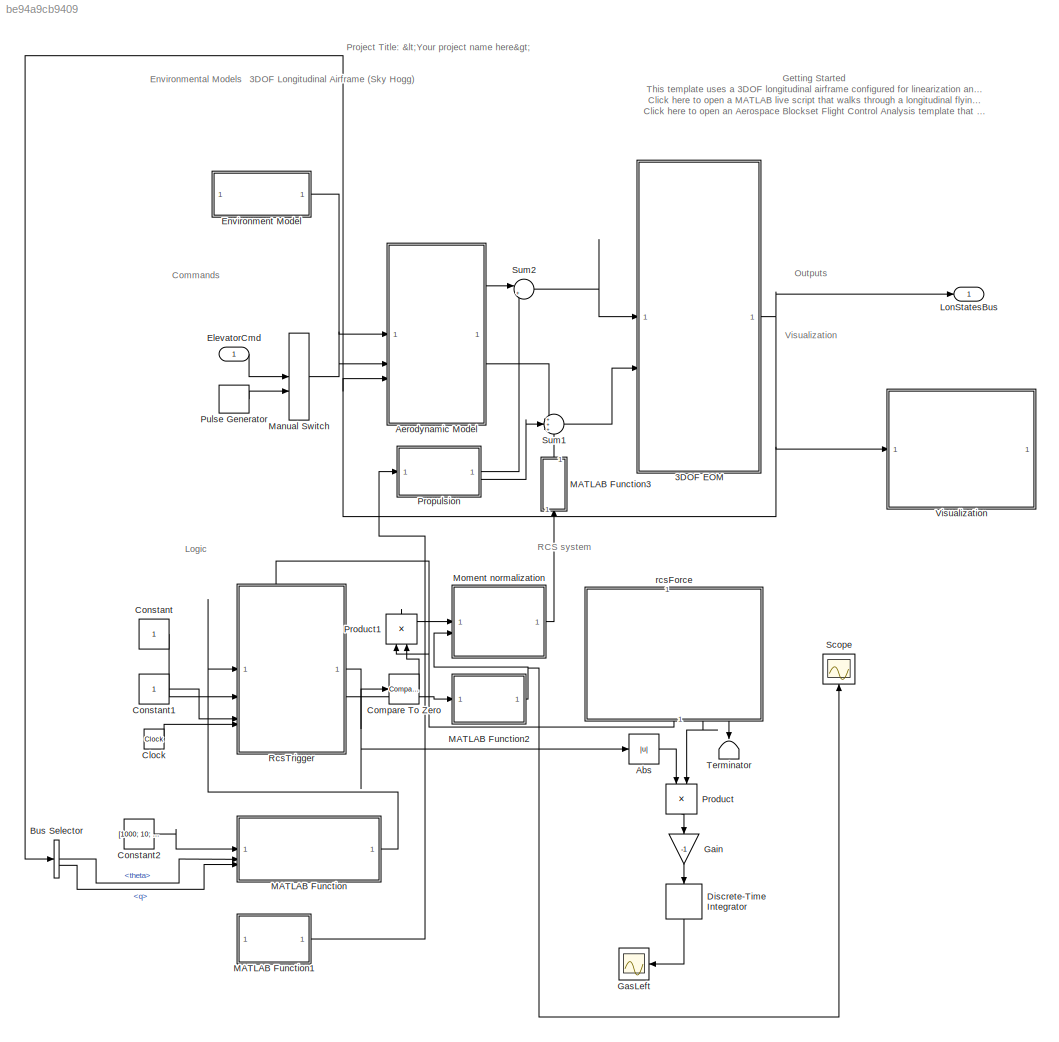
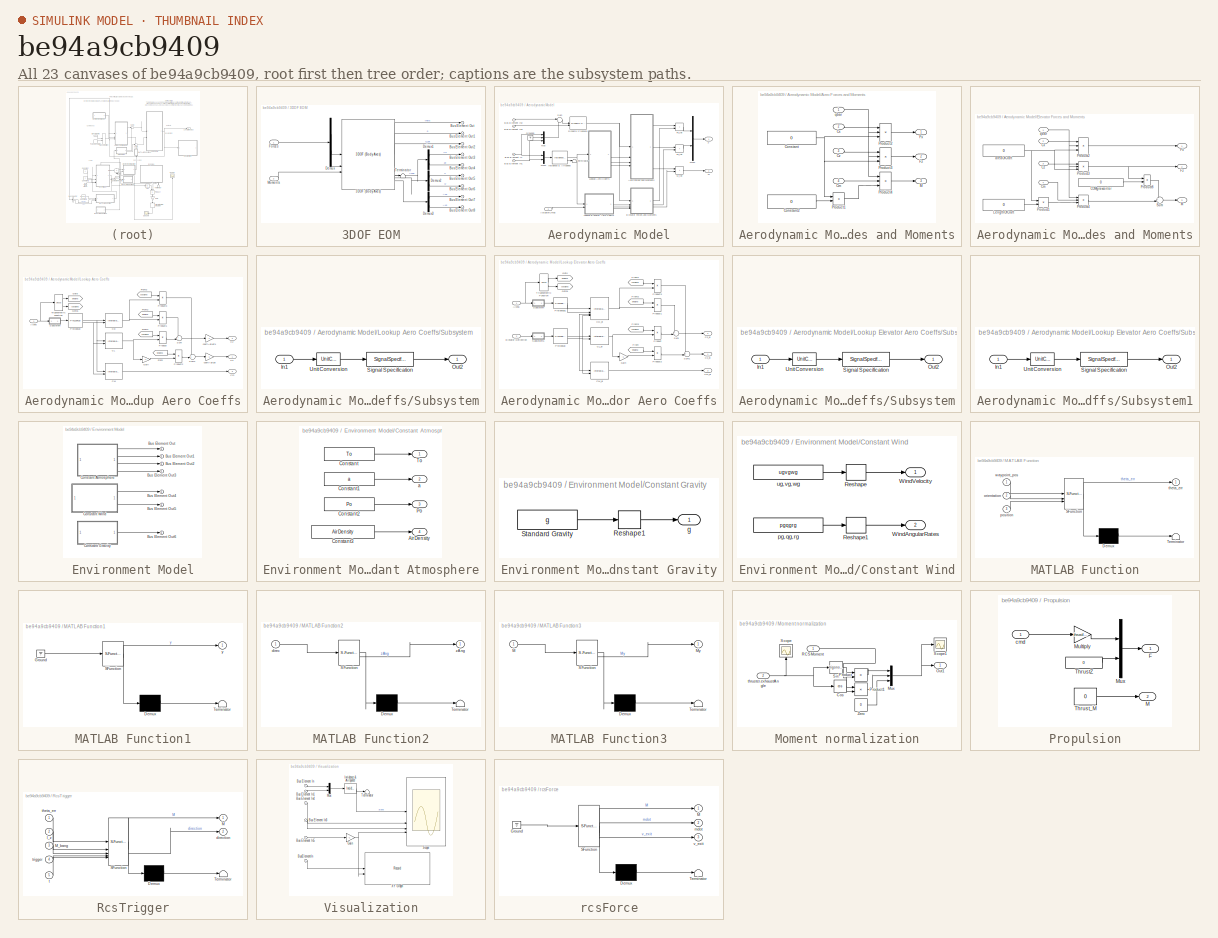
[diagram: thumbnail index - all 23 canvases of the model, root first then tree order]
MODEL slx_be94a9cb9409
KIND model
CONFIG AbsTol = auto
CONFIG EnableMultiTasking = off
CONFIG FixedStep = auto
CONFIG InitFcn = run('preSimLoad.m');\n\n
CONFIG MaxStep = auto
CONFIG MinStep = auto
CONFIG PreLoadFcn = run('preSimLoad.m');\n
CONFIG RelTol = 1e-5
CONFIG SampleTimeConstraint = Unconstrained
CONFIG SolverName = ode45
CONFIG StartTime = 0.0
CONFIG StopTime = 100
BLOCK [SubSystem] 3DOF EOM
  VariantControl = eom3DOF
BLOCK [Reference] 3DOF EOM/3DOF (Body Axes)  REF=shared3dof/3DOF (Body Axes)
  SourceBlock = shared3dof/3DOF (Body Axes)
  SourceType = 3DOF EoM
BLOCK [Outport] 3DOF EOM/Bus Element Out
  VectorParamsAs1DForOutWhenUnconnected = off
BLOCK [Outport] 3DOF EOM/Bus Element Out1
  VectorParamsAs1DForOutWhenUnconnected = off
BLOCK [Outport] 3DOF EOM/Bus Element Out2
  VectorParamsAs1DForOutWhenUnconnected = off
BLOCK [Outport] 3DOF EOM/Bus Element Out3
  VectorParamsAs1DForOutWhenUnconnected = off
BLOCK [Outport] 3DOF EOM/Bus Element Out4
  VectorParamsAs1DForOutWhenUnconnected = off
BLOCK [Outport] 3DOF EOM/Bus Element Out5
  VectorParamsAs1DForOutWhenUnconnected = off
BLOCK [Outport] 3DOF EOM/Bus Element Out6
  VectorParamsAs1DForOutWhenUnconnected = off
BLOCK [Outport] 3DOF EOM/Bus Element Out7
  VectorParamsAs1DForOutWhenUnconnected = off
BLOCK [Outport] 3DOF EOM/Bus Element Out8
  VectorParamsAs1DForOutWhenUnconnected = off
BLOCK [Demux] 3DOF EOM/Demux
  Outputs = 2
BLOCK [Demux] 3DOF EOM/Demux1
  Outputs = 2
BLOCK [Demux] 3DOF EOM/Demux2
  Outputs = 2
BLOCK [Demux] 3DOF EOM/Demux3
  Outputs = 2
BLOCK [Inport] 3DOF EOM/Forces
BLOCK [Inport] 3DOF EOM/Moments
  Port = 2
BLOCK [Terminator] 3DOF EOM/Terminator
BLOCK [Abs] Abs
  SaturateOnIntegerOverflow = off
BLOCK [SubSystem] Aerodynamic Model
  VariantControl = aeroCONST
BLOCK [Outport] Aerodynamic Model/ M
  Port = 2
  Unit = N*m
  VectorParamsAs1DForOutWhenUnconnected = off
BLOCK [Inport] Aerodynamic Model/ActuatorCmds
  Port = 2
BLOCK [SubSystem] Aerodynamic Model/Aero Forces and Moments
BLOCK [Inport] Aerodynamic Model/Aero Forces and Moments/Cm
  Port = 4
BLOCK [Constant] Aerodynamic Model/Aero Forces and Moments/Constant
  Value = 0
BLOCK [Constant] Aerodynamic Model/Aero Forces and Moments/Constant2
  Value = 0
BLOCK [Inport] Aerodynamic Model/Aero Forces and Moments/Cx
  Port = 2
BLOCK [Inport] Aerodynamic Model/Aero Forces and Moments/Cz
  Port = 3
BLOCK [Outport] Aerodynamic Model/Aero Forces and Moments/Fx
  VectorParamsAs1DForOutWhenUnconnected = off
BLOCK [Outport] Aerodynamic Model/Aero Forces and Moments/Fz
  Port = 2
  VectorParamsAs1DForOutWhenUnconnected = off
BLOCK [Outport] Aerodynamic Model/Aero Forces and Moments/M
  Port = 3
  VectorParamsAs1DForOutWhenUnconnected = off
BLOCK [Product] Aerodynamic Model/Aero Forces and Moments/Product1
  InputSameDT = on
  OutDataTypeStr = Inherit: Same as first input
  SaturateOnIntegerOverflow = on
BLOCK [Product] Aerodynamic Model/Aero Forces and Moments/Product2
  InputSameDT = on
  Inputs = 3
  OutDataTypeStr = Inherit: Same as first input
  SaturateOnIntegerOverflow = on
BLOCK [Product] Aerodynamic Model/Aero Forces and Moments/Product3
  InputSameDT = on
  Inputs = 3
  OutDataTypeStr = Inherit: Same as first input
  SaturateOnIntegerOverflow = on
BLOCK [Product] Aerodynamic Model/Aero Forces and Moments/Product4
  InputSameDT = on
  Inputs = 3
  OutDataTypeStr = Inherit: Same as first input
  SaturateOnIntegerOverflow = on
BLOCK [Inport] Aerodynamic Model/Aero Forces and Moments/qbar
BLOCK [Inport] Aerodynamic Model/Bus Element In
  Port = 3
BLOCK [Inport] Aerodynamic Model/Bus Element In1
  Port = 3
BLOCK [Inport] Aerodynamic Model/Bus Element In2
BLOCK [Inport] Aerodynamic Model/Bus Element In3
BLOCK [Reference] Aerodynamic Model/Dynamic Pressure  REF=aerolibasang/Dynamic Pressure
  SourceBlock = aerolibasang/Dynamic Pressure
  SourceType = Dynamic Pressure
BLOCK [SubSystem] Aerodynamic Model/Elevator Forces and Moments
BLOCK [Constant] Aerodynamic Model/Elevator Forces and Moments/COMgravcenter
  Value = 0
BLOCK [Inport] Aerodynamic Model/Elevator Forces and Moments/Cm
  Port = 4
BLOCK [Inport] Aerodynamic Model/Elevator Forces and Moments/Cx
  Port = 2
BLOCK [Inport] Aerodynamic Model/Elevator Forces and Moments/Cz
  Port = 3
BLOCK [Outport] Aerodynamic Model/Elevator Forces and Moments/Fx
  VectorParamsAs1DForOutWhenUnconnected = off
BLOCK [Outport] Aerodynamic Model/Elevator Forces and Moments/Fz
  Port = 2
  VectorParamsAs1DForOutWhenUnconnected = off
BLOCK [Constant] Aerodynamic Model/Elevator Forces and Moments/LengthOfCraft
  Value = 0
BLOCK [Outport] Aerodynamic Model/Elevator Forces and Moments/M
  Port = 3
  VectorParamsAs1DForOutWhenUnconnected = off
BLOCK [Product] Aerodynamic Model/Elevator Forces and Moments/Product1
  InputSameDT = on
  OutDataTypeStr = Inherit: Same as first input
  SaturateOnIntegerOverflow = on
BLOCK [Product] Aerodynamic Model/Elevator Forces and Moments/Product2
  InputSameDT = on
  Inputs = 3
  OutDataTypeStr = Inherit: Same as first input
  SaturateOnIntegerOverflow = on
BLOCK [Product] Aerodynamic Model/Elevator Forces and Moments/Product3
  InputSameDT = on
  Inputs = 3
  OutDataTypeStr = Inherit: Same as first input
  SaturateOnIntegerOverflow = on
BLOCK [Product] Aerodynamic Model/Elevator Forces and Moments/Product4
  InputSameDT = on
  Inputs = 3
  OutDataTypeStr = Inherit: Same as first input
  SaturateOnIntegerOverflow = on
BLOCK [Product] Aerodynamic Model/Elevator Forces and Moments/Product8
BLOCK [Sum] Aerodynamic Model/Elevator Forces and Moments/Sum
  Inputs = ++|
BLOCK [Constant] Aerodynamic Model/Elevator Forces and Moments/areaOfCraft
  Value = 0
BLOCK [Inport] Aerodynamic Model/Elevator Forces and Moments/qbar
BLOCK [Outport] Aerodynamic Model/F
  VectorParamsAs1DForOutWhenUnconnected = off
BLOCK [Sum] Aerodynamic Model/Fx_tot
  IconShape = rectangular
  InputSameDT = on
  OutDataTypeStr = Inherit: Same as first input
  SaturateOnIntegerOverflow = on
BLOCK [Sum] Aerodynamic Model/Fz_tot
  IconShape = rectangular
  InputSameDT = on
  OutDataTypeStr = Inherit: Same as first input
  SaturateOnIntegerOverflow = on
BLOCK [Ground] Aerodynamic Model/Ground3
BLOCK [Reference] Aerodynamic Model/Incidence & Airspeed  REF=aerolibasang/Incidence 
& Airspeed
  SourceBlock = aerolibasang/Incidence \n& Airspeed
  SourceType = Incidence&Airspeed
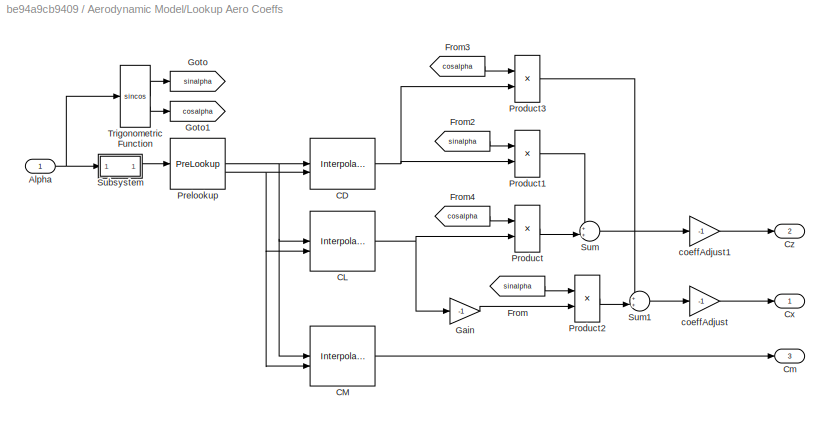
BLOCK [SubSystem] Aerodynamic Model/Lookup Aero Coeffs
  Commented = on
BLOCK [Inport] Aerodynamic Model/Lookup Aero Coeffs/Alpha
  Unit = rad
BLOCK [Interpolation_n-D] Aerodynamic Model/Lookup Aero Coeffs/CD
  InputPortMap = u0,u1
  IntermediateResultsDataTypeStr = Inherit: Inherit via internal rule
  InternalRulePriority = Speed
  NumberOfTableDimensions = 1
  Table = getCoefficient(aircraft,"CD","Zero").Table.Value
BLOCK [Interpolation_n-D] Aerodynamic Model/Lookup Aero Coeffs/CL
  InputPortMap = u0,u1
  IntermediateResultsDataTypeStr = Inherit: Inherit via internal rule
  InternalRulePriority = Speed
  NumberOfTableDimensions = 1
  Table = getCoefficient(aircraft,"CL","Zero").Table.Value
BLOCK [Interpolation_n-D] Aerodynamic Model/Lookup Aero Coeffs/CM
  InputPortMap = u0,u1
  IntermediateResultsDataTypeStr = Inherit: Inherit via internal rule
  InternalRulePriority = Speed
  NumberOfTableDimensions = 1
  Table = getCoefficient(aircraft,"Cm","Zero").Table.Value
BLOCK [Outport] Aerodynamic Model/Lookup Aero Coeffs/Cm
  Port = 3
  VectorParamsAs1DForOutWhenUnconnected = off
BLOCK [Outport] Aerodynamic Model/Lookup Aero Coeffs/Cx
  VectorParamsAs1DForOutWhenUnconnected = off
BLOCK [Outport] Aerodynamic Model/Lookup Aero Coeffs/Cz
  Port = 2
  VectorParamsAs1DForOutWhenUnconnected = off
BLOCK [From] Aerodynamic Model/Lookup Aero Coeffs/From
  GotoTag = sinalpha
BLOCK [From] Aerodynamic Model/Lookup Aero Coeffs/From2
  GotoTag = sinalpha
BLOCK [From] Aerodynamic Model/Lookup Aero Coeffs/From3
  GotoTag = cosalpha
BLOCK [From] Aerodynamic Model/Lookup Aero Coeffs/From4
  GotoTag = cosalpha
BLOCK [Gain] Aerodynamic Model/Lookup Aero Coeffs/Gain
  Gain = -1
BLOCK [Goto] Aerodynamic Model/Lookup Aero Coeffs/Goto
  GotoTag = sinalpha
BLOCK [Goto] Aerodynamic Model/Lookup Aero Coeffs/Goto1
  GotoTag = cosalpha
BLOCK [PreLookup] Aerodynamic Model/Lookup Aero Coeffs/Prelookup
  BreakpointsData = getCoefficient(aircraft,"CD","Zero").Breakpoints(1).Value
  ExtrapMethod = Linear
  InputPortMap = u0
BLOCK [Product] Aerodynamic Model/Lookup Aero Coeffs/Product
BLOCK [Product] Aerodynamic Model/Lookup Aero Coeffs/Product1
BLOCK [Product] Aerodynamic Model/Lookup Aero Coeffs/Product2
BLOCK [Product] Aerodynamic Model/Lookup Aero Coeffs/Product3
BLOCK [SubSystem] Aerodynamic Model/Lookup Aero Coeffs/Subsystem
BLOCK [Inport] Aerodynamic Model/Lookup Aero Coeffs/Subsystem/In1
BLOCK [Outport] Aerodynamic Model/Lookup Aero Coeffs/Subsystem/Out2
  VectorParamsAs1DForOutWhenUnconnected = off
BLOCK [SignalSpecification] Aerodynamic Model/Lookup Aero Coeffs/Subsystem/Signal Specification
  Unit = deg
BLOCK [UnitConversion] Aerodynamic Model/Lookup Aero Coeffs/Subsystem/Unit Conversion
BLOCK [Sum] Aerodynamic Model/Lookup Aero Coeffs/Sum
  Inputs = ++|
BLOCK [Sum] Aerodynamic Model/Lookup Aero Coeffs/Sum1
  Inputs = ++|
BLOCK [Trigonometry] Aerodynamic Model/Lookup Aero Coeffs/Trigonometric Function
  Operator = sincos
BLOCK [Gain] Aerodynamic Model/Lookup Aero Coeffs/coeffAdjust
  Gain = -1
BLOCK [Gain] Aerodynamic Model/Lookup Aero Coeffs/coeffAdjust1
  Gain = -1
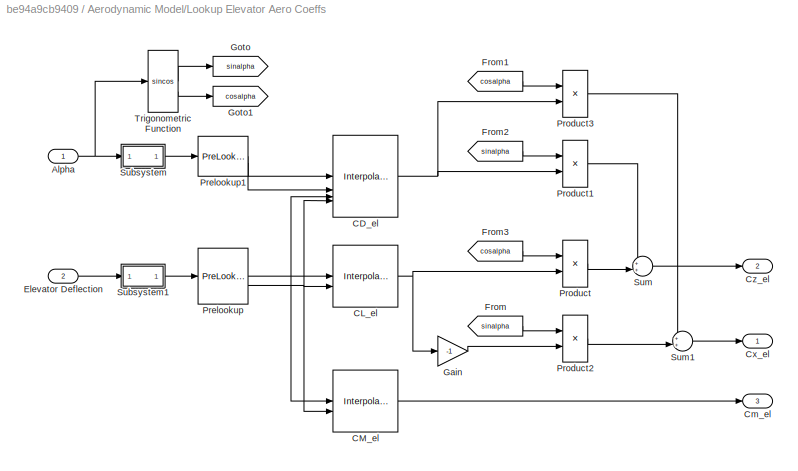
BLOCK [SubSystem] Aerodynamic Model/Lookup Elevator Aero Coeffs
  Commented = on
BLOCK [Inport] Aerodynamic Model/Lookup Elevator Aero Coeffs/Alpha
  Unit = rad
BLOCK [Interpolation_n-D] Aerodynamic Model/Lookup Elevator Aero Coeffs/CD_el
  InputPortMap = u0,u1,u2,u3
  Table = getCoefficient(aircraft,"CD","Elevator",Component="Elevator").Table.Value
BLOCK [Interpolation_n-D] Aerodynamic Model/Lookup Elevator Aero Coeffs/CL_el
  InputPortMap = u0,u1
  IntermediateResultsDataTypeStr = Inherit: Inherit via internal rule
  InternalRulePriority = Speed
  NumberOfTableDimensions = 1
  Table = getCoefficient(aircraft,"CL","Elevator",Component="Elevator").Table.Value
BLOCK [Interpolation_n-D] Aerodynamic Model/Lookup Elevator Aero Coeffs/CM_el
  InputPortMap = u0,u1
  IntermediateResultsDataTypeStr = Inherit: Inherit via internal rule
  InternalRulePriority = Speed
  NumberOfTableDimensions = 1
  Table = getCoefficient(aircraft,"Cm","Elevator",Component="Elevator").Table.Value
BLOCK [Outport] Aerodynamic Model/Lookup Elevator Aero Coeffs/Cm_el
  Port = 3
  VectorParamsAs1DForOutWhenUnconnected = off
BLOCK [Outport] Aerodynamic Model/Lookup Elevator Aero Coeffs/Cx_el
  VectorParamsAs1DForOutWhenUnconnected = off
BLOCK [Outport] Aerodynamic Model/Lookup Elevator Aero Coeffs/Cz_el
  Port = 2
  VectorParamsAs1DForOutWhenUnconnected = off
BLOCK [Inport] Aerodynamic Model/Lookup Elevator Aero Coeffs/Elevator Deflection
  Port = 2
  Unit = rad
BLOCK [From] Aerodynamic Model/Lookup Elevator Aero Coeffs/From
  GotoTag = sinalpha
BLOCK [From] Aerodynamic Model/Lookup Elevator Aero Coeffs/From1
  GotoTag = cosalpha
BLOCK [From] Aerodynamic Model/Lookup Elevator Aero Coeffs/From2
  GotoTag = sinalpha
BLOCK [From] Aerodynamic Model/Lookup Elevator Aero Coeffs/From3
  GotoTag = cosalpha
BLOCK [Gain] Aerodynamic Model/Lookup Elevator Aero Coeffs/Gain
  Gain = -1
BLOCK [Goto] Aerodynamic Model/Lookup Elevator Aero Coeffs/Goto
  GotoTag = sinalpha
BLOCK [Goto] Aerodynamic Model/Lookup Elevator Aero Coeffs/Goto1
  GotoTag = cosalpha
BLOCK [PreLookup] Aerodynamic Model/Lookup Elevator Aero Coeffs/Prelookup
  BreakpointsData = getCoefficient(aircraft,"CD","Elevator",Component="Elevator").Breakpoints(2).Value
  ExtrapMethod = Linear
  FractionDataTypeStr = double
  IndexDataTypeStr = int32
  InputPortMap = u0
BLOCK [PreLookup] Aerodynamic Model/Lookup Elevator Aero Coeffs/Prelookup1
  BreakpointsData = getCoefficient(aircraft,"CD","Elevator",Component="Elevator").Breakpoints(1).Value
  ExtrapMethod = Linear
  FractionDataTypeStr = double
  IndexDataTypeStr = int32
  InputPortMap = u0
BLOCK [Product] Aerodynamic Model/Lookup Elevator Aero Coeffs/Product
BLOCK [Product] Aerodynamic Model/Lookup Elevator Aero Coeffs/Product1
BLOCK [Product] Aerodynamic Model/Lookup Elevator Aero Coeffs/Product2
BLOCK [Product] Aerodynamic Model/Lookup Elevator Aero Coeffs/Product3
BLOCK [SubSystem] Aerodynamic Model/Lookup Elevator Aero Coeffs/Subsystem
BLOCK [Inport] Aerodynamic Model/Lookup Elevator Aero Coeffs/Subsystem/In1
BLOCK [Outport] Aerodynamic Model/Lookup Elevator Aero Coeffs/Subsystem/Out2
  VectorParamsAs1DForOutWhenUnconnected = off
BLOCK [SignalSpecification] Aerodynamic Model/Lookup Elevator Aero Coeffs/Subsystem/Signal Specification
  Unit = deg
BLOCK [UnitConversion] Aerodynamic Model/Lookup Elevator Aero Coeffs/Subsystem/Unit Conversion
BLOCK [SubSystem] Aerodynamic Model/Lookup Elevator Aero Coeffs/Subsystem1
BLOCK [Inport] Aerodynamic Model/Lookup Elevator Aero Coeffs/Subsystem1/In1
BLOCK [Outport] Aerodynamic Model/Lookup Elevator Aero Coeffs/Subsystem1/Out2
  VectorParamsAs1DForOutWhenUnconnected = off
BLOCK [SignalSpecification] Aerodynamic Model/Lookup Elevator Aero Coeffs/Subsystem1/Signal Specification
  Unit = deg
BLOCK [UnitConversion] Aerodynamic Model/Lookup Elevator Aero Coeffs/Subsystem1/Unit Conversion
BLOCK [Sum] Aerodynamic Model/Lookup Elevator Aero Coeffs/Sum
  Inputs = ++|
BLOCK [Sum] Aerodynamic Model/Lookup Elevator Aero Coeffs/Sum1
  Inputs = ++|
BLOCK [Trigonometry] Aerodynamic Model/Lookup Elevator Aero Coeffs/Trigonometric Function
  Operator = sincos
BLOCK [Sum] Aerodynamic Model/M_tot
  IconShape = rectangular
  InputSameDT = on
  OutDataTypeStr = Inherit: Same as first input
  SaturateOnIntegerOverflow = on
BLOCK [Mux] Aerodynamic Model/Mux
  DisplayOption = bar
  Inputs = 3
BLOCK [Mux] Aerodynamic Model/Mux2
  DisplayOption = bar
  Inputs = 2
BLOCK [Mux] Aerodynamic Model/Mux4
  DisplayOption = bar
  Inputs = 2
BLOCK [Sum] Aerodynamic Model/Sum
  Inputs = |-+
BLOCK [Terminator] Aerodynamic Model/Terminator
BLOCK [BusSelector] Bus Selector
  OutputSignals = theta,q
BLOCK [Clock] Clock
BLOCK [Reference] Compare To Zero  REF=simulink/Logic and Bit
Operations/Compare
To Zero
  SourceBlock = simulink/Logic and Bit\nOperations/Compare\nTo Zero
  SourceType = Compare To Zero
BLOCK [Constant] Constant
BLOCK [Constant] Constant1
BLOCK [Constant] Constant2
  Value = [1000; 10; 0]
BLOCK [DiscreteIntegrator] Discrete-Time Integrator
  ICPrevOutput = DiscIntNeverNeededParam
  ICPrevScaledInput = DiscIntNeverNeededParam
  InitialCondition = thruster_initialMass
  InitialConditionSetting = Auto
  NameLocation = left
  SampleTime = -1
BLOCK [Inport] ElevatorCmd
BLOCK [SubSystem] Environment Model
BLOCK [Outport] Environment Model/Bus Element Out
  VectorParamsAs1DForOutWhenUnconnected = off
BLOCK [Outport] Environment Model/Bus Element Out1
  VectorParamsAs1DForOutWhenUnconnected = off
BLOCK [Outport] Environment Model/Bus Element Out2
  VectorParamsAs1DForOutWhenUnconnected = off
BLOCK [Outport] Environment Model/Bus Element Out3
  VectorParamsAs1DForOutWhenUnconnected = off
BLOCK [Outport] Environment Model/Bus Element Out4
  VectorParamsAs1DForOutWhenUnconnected = off
BLOCK [Outport] Environment Model/Bus Element Out5
  VectorParamsAs1DForOutWhenUnconnected = off
BLOCK [Outport] Environment Model/Bus Element Out6
  VectorParamsAs1DForOutWhenUnconnected = off
BLOCK [SubSystem] Environment Model/Constant Atmosphere
  VariantControl = atmosCONST
BLOCK [Outport] Environment Model/Constant Atmosphere/AirDensity
  Port = 4
  VectorParamsAs1DForOutWhenUnconnected = off
BLOCK [Constant] Environment Model/Constant Atmosphere/Constant
  Value = To
BLOCK [Constant] Environment Model/Constant Atmosphere/Constant1
  Value = a
BLOCK [Constant] Environment Model/Constant Atmosphere/Constant2
  Value = Po
BLOCK [Constant] Environment Model/Constant Atmosphere/Constant3
  Value = AirDensity
BLOCK [Outport] Environment Model/Constant Atmosphere/Po
  Port = 3
  VectorParamsAs1DForOutWhenUnconnected = off
BLOCK [Outport] Environment Model/Constant Atmosphere/To
  VectorParamsAs1DForOutWhenUnconnected = off
BLOCK [Outport] Environment Model/Constant Atmosphere/a
  Port = 2
  VectorParamsAs1DForOutWhenUnconnected = off
BLOCK [SubSystem] Environment Model/Constant Gravity
  VariantControl = gravCONST
BLOCK [Reshape] Environment Model/Constant Gravity/Reshape1
  OutputDimensionality = Column vector (2-D)
BLOCK [Constant] Environment Model/Constant Gravity/Standard Gravity
  Value = g
BLOCK [Outport] Environment Model/Constant Gravity/g
  VectorParamsAs1DForOutWhenUnconnected = off
BLOCK [SubSystem] Environment Model/Constant Wind
  VariantControl = windCONST
BLOCK [Reshape] Environment Model/Constant Wind/Reshape
  OutputDimensionality = Column vector (2-D)
BLOCK [Reshape] Environment Model/Constant Wind/Reshape1
  OutputDimensionality = Column vector (2-D)
BLOCK [Outport] Environment Model/Constant Wind/WindAngularRates
  Port = 2
  VectorParamsAs1DForOutWhenUnconnected = off
BLOCK [Outport] Environment Model/Constant Wind/WindVelocity
  VectorParamsAs1DForOutWhenUnconnected = off
BLOCK [Constant] Environment Model/Constant Wind/pg,qg,rg
  Value = pgqgrg
BLOCK [Constant] Environment Model/Constant Wind/ug,vg,wg
  Value = ugvgwg
BLOCK [Gain] Gain
  Gain = -1
  NameLocation = left
BLOCK [Scope] GasLeft
  Floating = off
  NameLocation = top
  NumInputPorts = 1
  ScopeSpecificationString = Simulink.scopes.TimeScopeBlockCfg('CurrentConfiguration', extmgr.ConfigurationSet(extmgr.Configuration('Core','General UI',true),extmgr.Configuration('Core','Source UI',true),extmgr.Configuration('Sources','WiredSimulink',true,'DataLoggingVariableName','ScopeData1'),extmgr.Configuration('Visuals','Time Domain',true),extmgr.Configuration('Tools','Plot Navigation',true),extmgr.Configuration('Tools',...<+40ch>
BLOCK [Outport] LonStatesBus
  VectorParamsAs1DForOutWhenUnconnected = off
BLOCK [SubSystem] MATLAB Function
  ErrorFcn = Stateflow.Translate.translate
  PermitHierarchicalResolution = ExplicitOnly
  SFBlockType = MATLAB Function
  TreatAsAtomicUnit = on
BLOCK [Demux] MATLAB Function/ Demux 
  Outputs = 1
BLOCK [S-Function] MATLAB Function/ SFunction 
  EnableBusSupport = on
  FunctionName = sf_sfun
  PortCounts = [3 2]
  SFcnIsStateOwnerBlock = off
  SFunctionDeploymentMode = off
  Tag = Stateflow S-Function 3
BLOCK [Terminator] MATLAB Function/ Terminator 
BLOCK [Inport] MATLAB Function/orientation
  Port = 2
BLOCK [Inport] MATLAB Function/position
  Port = 3
BLOCK [Outport] MATLAB Function/theta_err
BLOCK [Inport] MATLAB Function/waypoint_pos
BLOCK [SubSystem] MATLAB Function1
  ErrorFcn = Stateflow.Translate.translate
  PermitHierarchicalResolution = ExplicitOnly
  SFBlockType = MATLAB Function
  TreatAsAtomicUnit = on
BLOCK [Demux] MATLAB Function1/ Demux 
  Outputs = 1
BLOCK [Ground] MATLAB Function1/ Ground 
BLOCK [S-Function] MATLAB Function1/ SFunction 
  EnableBusSupport = on
  FunctionName = sf_sfun
  PortCounts = [1 2]
  SFcnIsStateOwnerBlock = off
  SFunctionDeploymentMode = off
  Tag = Stateflow S-Function 4
BLOCK [Terminator] MATLAB Function1/ Terminator 
BLOCK [Outport] MATLAB Function1/y
BLOCK [SubSystem] MATLAB Function2
  ErrorFcn = Stateflow.Translate.translate
  PermitHierarchicalResolution = ExplicitOnly
  SFBlockType = MATLAB Function
  TreatAsAtomicUnit = on
BLOCK [Demux] MATLAB Function2/ Demux 
  Outputs = 1
BLOCK [S-Function] MATLAB Function2/ SFunction 
  EnableBusSupport = on
  FunctionName = sf_sfun
  PortCounts = [1 2]
  SFcnIsStateOwnerBlock = off
  SFunctionDeploymentMode = off
  Tag = Stateflow S-Function 6
BLOCK [Terminator] MATLAB Function2/ Terminator 
BLOCK [Inport] MATLAB Function2/direc
BLOCK [Outport] MATLAB Function2/zAng
BLOCK [SubSystem] MATLAB Function3
  ErrorFcn = Stateflow.Translate.translate
  NameLocation = right
  PermitHierarchicalResolution = ExplicitOnly
  SFBlockType = MATLAB Function
  TreatAsAtomicUnit = on
BLOCK [Demux] MATLAB Function3/ Demux 
  Outputs = 1
BLOCK [S-Function] MATLAB Function3/ SFunction 
  EnableBusSupport = on
  FunctionName = sf_sfun
  PortCounts = [1 2]
  SFcnIsStateOwnerBlock = off
  SFunctionDeploymentMode = off
  Tag = Stateflow S-Function 5
BLOCK [Terminator] MATLAB Function3/ Terminator 
BLOCK [Inport] MATLAB Function3/M
BLOCK [Outport] MATLAB Function3/My
BLOCK [ManualSwitch] Manual Switch
BLOCK [SubSystem] Moment normalization
BLOCK [Trigonometry] Moment normalization/Cos
  Operator = cos
BLOCK [Mux] Moment normalization/Mux
  DisplayOption = bar
  Inputs = 3
BLOCK [Outport] Moment normalization/Out1
BLOCK [Product] Moment normalization/Product
BLOCK [Product] Moment normalization/Product1
BLOCK [Inport] Moment normalization/RCSMoment
BLOCK [Scope] Moment normalization/Scope
  Floating = off
  NameLocation = right
  NumInputPorts = 1
  ScopeSpecificationString = Simulink.scopes.TimeScopeBlockCfg('CurrentConfiguration', extmgr.ConfigurationSet(extmgr.Configuration('Core','General UI',true),extmgr.Configuration('Core','Source UI',true),extmgr.Configuration('Sources','WiredSimulink',true,'DataLoggingVariableName','ScopeData1'),extmgr.Configuration('Visuals','Time Domain',true,'SerializedDisplays',{struct('MinYLimReal','-0.59018','MaxYLimReal','5.31161','YLab...<+1495ch>
BLOCK [Scope] Moment normalization/Scope1
  Floating = off
  NumInputPorts = 1
  ScopeSpecificationString = Simulink.scopes.TimeScopeBlockCfg('CurrentConfiguration', extmgr.ConfigurationSet(extmgr.Configuration('Core','General UI',true),extmgr.Configuration('Core','Source UI',true),extmgr.Configuration('Sources','WiredSimulink',true,'DataLoggingVariableName','ScopeData1'),extmgr.Configuration('Visuals','Time Domain',true,'SerializedDisplays',{struct('MinYLimReal','-0.592','MaxYLimReal','0.59202','YLabel...<+1526ch>
BLOCK [Trigonometry] Moment normalization/Sin
BLOCK [Constant] Moment normalization/Zero
  OutDataTypeStr = Inherit: Inherit via back propagation
  Value = 0
BLOCK [Inport] Moment normalization/thruster.exhaustAngle
  Port = 2
BLOCK [Product] Product
  NameLocation = left
BLOCK [Product] Product1
  NameLocation = right
BLOCK [SubSystem] Propulsion
  RTWSystemCode = Inline
BLOCK [Outport] Propulsion/F
  Unit = N
  VectorParamsAs1DForOutWhenUnconnected = off
BLOCK [Outport] Propulsion/M
  Port = 2
  Unit = N*m
  VectorParamsAs1DForOutWhenUnconnected = off
BLOCK [Gain] Propulsion/Multiply
  Gain = thrustInNewton
BLOCK [Mux] Propulsion/Mux
  DisplayOption = bar
  Inputs = 2
BLOCK [Constant] Propulsion/ThrustZ
  SampleTime = -1
  Value = 0
BLOCK [Constant] Propulsion/Thrust_M
  SampleTime = -1
  Value = 0
BLOCK [Inport] Propulsion/cmd
BLOCK [DiscretePulseGenerator] Pulse Generator
  Amplitude = -2*pi/180
  Period = 500
  PhaseDelay = 10
  PulseType = Time based
  PulseWidth = .5
BLOCK [SubSystem] RcsTrigger
  ErrorFcn = Stateflow.Translate.translate
  PermitHierarchicalResolution = ExplicitOnly
  SFBlockType = MATLAB Function
  TreatAsAtomicUnit = on
BLOCK [Demux] RcsTrigger/ Demux 
  Outputs = 1
BLOCK [S-Function] RcsTrigger/ SFunction 
  EnableBusSupport = on
  FunctionName = sf_sfun
  PortCounts = [5 3]
  SFcnIsStateOwnerBlock = off
  SFunctionDeploymentMode = off
  Tag = Stateflow S-Function 1
BLOCK [Terminator] RcsTrigger/ Terminator 
BLOCK [Inport] RcsTrigger/I_z
  Port = 2
BLOCK [Outport] RcsTrigger/M
BLOCK [Inport] RcsTrigger/M_bang
  Port = 3
BLOCK [Outport] RcsTrigger/direction
  Port = 2
BLOCK [Inport] RcsTrigger/t
  Port = 5
BLOCK [Inport] RcsTrigger/theta_err
BLOCK [Inport] RcsTrigger/trigger
  Port = 4
BLOCK [Scope] Scope
  Floating = off
  NameLocation = right
  NumInputPorts = 1
  ScopeSpecificationString = Simulink.scopes.TimeScopeBlockCfg('CurrentConfiguration', extmgr.ConfigurationSet(extmgr.Configuration('Core','General UI',true),extmgr.Configuration('Core','Source UI',true),extmgr.Configuration('Sources','WiredSimulink',true,'DataLoggingVariableName','ScopeData2'),extmgr.Configuration('Visuals','Time Domain',true,'SerializedDisplays',{struct('MinYLimReal','-0.59018','MaxYLimReal','5.31161','YLab...<+1490ch>
BLOCK [Sum] Sum1
  InputSameDT = on
  Inputs = +++
  OutDataTypeStr = Inherit: Same as first input
  SaturateOnIntegerOverflow = on
BLOCK [Sum] Sum2
  InputSameDT = on
  Inputs = |++
  OutDataTypeStr = Inherit: Same as first input
  SaturateOnIntegerOverflow = on
BLOCK [Terminator] Terminator
  NameLocation = left
BLOCK [SubSystem] Visualization
BLOCK [Inport] Visualization/Bus Element In
BLOCK [Inport] Visualization/Bus Element In1
BLOCK [Inport] Visualization/Bus Element In3
BLOCK [Inport] Visualization/Bus Element In4
BLOCK [Inport] Visualization/Bus Element In5
BLOCK [Inport] Visualization/BusElementIn
BLOCK [Gain] Visualization/Gain
  Gain = -1
BLOCK [Reference] Visualization/Incidence & Airspeed  REF=aerolibasang/Incidence 
& Airspeed
  SourceBlock = aerolibasang/Incidence \n& Airspeed
  SourceType = Incidence&Airspeed
BLOCK [Mux] Visualization/Mux
  DisplayOption = bar
  Inputs = 2
BLOCK [Scope] Visualization/Scope
  Floating = off
  NumInputPorts = 4
  ScopeSpecificationString = Simulink.scopes.TimeScopeBlockCfg('CurrentConfiguration', extmgr.ConfigurationSet(extmgr.Configuration('Core','General UI',true),extmgr.Configuration('Core','Source UI',true),extmgr.Configuration('Sources','WiredSimulink',true,'DataLoggingVariableName','ScopeData2'),extmgr.Configuration('Visuals','Time Domain',true,'SerializedDisplays',{struct('MinYLimReal','-3.91613','MaxYLimReal','3.92003','YLab...<+3887ch>
BLOCK [Terminator] Visualization/Terminator
BLOCK [Record] Visualization/XY Graph
  CompatibilityTag = XY
  FileSettingsInternal = {"entries":[{"content":{"excelSettings":{"content":{},"type":"Streamout.ExcelSettings"}},"type":"Streamout.FileSettingStorage","uuid":""}],"packageUris":["http:\/\/schema.mathworks.com\/mf0\/streamout_blocks\/R2020a"],"version":"1.0"}
  Layout = [1 1]
  SignalsInternal = {"entries":[{"content":{"signals":[{"content":{"blockPath":[],"dimensions":[1],"domain":"","lineColor":"#a2142f","plots":[ 1 ],"port":1,"sid":[""],"signalID":1,"signalName":"Xe"},"type":"RecordBlkView.Signal","uuid":""},{"content":{"blockPath":[],"dimensions":[1],"domain":"","lineColor":"#139fff","plots":[ 1 ],"port":2,"sid":[""],"signalID":2,"signalName":"Gain"},"type":"RecordBlkView.Signal","uui...<+152ch>
  VisualizationBindings = {"xyplotplugin":{"info":[{"series":[{"bindingParametersList":[{"parameter":"X-Axis","signalID":1,"signalName":"Xe"},{"parameter":"Y-Axis","signalID":2,"signalName":"Gain"}],"seriesID":0}],"subplotID":1}]}}
BLOCK [SubSystem] rcsForce
  ErrorFcn = Stateflow.Translate.translate
  NameLocation = left
  PermitHierarchicalResolution = ExplicitOnly
  SFBlockType = MATLAB Function
  TreatAsAtomicUnit = on
BLOCK [Demux] rcsForce/ Demux 
  Outputs = 1
BLOCK [Ground] rcsForce/ Ground 
BLOCK [S-Function] rcsForce/ SFunction 
  EnableBusSupport = on
  FunctionName = sf_sfun
  PortCounts = [1 4]
  SFcnIsStateOwnerBlock = off
  SFunctionDeploymentMode = off
  Tag = Stateflow S-Function 2
BLOCK [Terminator] rcsForce/ Terminator 
BLOCK [Outport] rcsForce/M
BLOCK [Outport] rcsForce/mdot
  Port = 2
BLOCK [Outport] rcsForce/v_exit
  Port = 3
ANNOTATION (root): 3DOF Longitudinal Airframe (Sky Hogg)
ANNOTATION (root): Getting Started This template uses a 3DOF longitudinal airframe configured for linearization and handling quality analysis using Simulink Control Design. The Sky Hogg airframe parameters are used to initialize this template. Click here to open a MATLAB live script that walks through a longitudinal flying quality analysis workflow for this airframe. Click here to open an Aerospace Blockset Flight C...<+106ch>
ANNOTATION (root): Project Title: <Your project name here>
ANNOTATION (root): Commands
ANNOTATION (root): Environmental Models
ANNOTATION (root): Logic
ANNOTATION (root): Outputs
ANNOTATION (root): RCS system
ANNOTATION (root): Visualization
LINE 3DOF EOM/3DOF (Body Axes):1 -> 3DOF EOM/Bus Element Out:1
LINE 3DOF EOM/3DOF (Body Axes):2 -> 3DOF EOM/Bus Element Out1:1
LINE 3DOF EOM/3DOF (Body Axes):3 -> 3DOF EOM/Bus Element Out2:1
LINE 3DOF EOM/3DOF (Body Axes):4 -> 3DOF EOM/Demux1:1
LINE 3DOF EOM/3DOF (Body Axes):5 -> 3DOF EOM/Demux2:1
LINE 3DOF EOM/3DOF (Body Axes):6 -> 3DOF EOM/Terminator:1
LINE 3DOF EOM/3DOF (Body Axes):7 -> 3DOF EOM/Demux3:1
LINE 3DOF EOM/Demux1:1 -> 3DOF EOM/Bus Element Out3:1
LINE 3DOF EOM/Demux1:2 -> 3DOF EOM/Bus Element Out4:1
LINE 3DOF EOM/Demux2:1 -> 3DOF EOM/Bus Element Out5:1
LINE 3DOF EOM/Demux2:2 -> 3DOF EOM/Bus Element Out6:1
LINE 3DOF EOM/Demux3:1 -> 3DOF EOM/Bus Element Out7:1
LINE 3DOF EOM/Demux3:2 -> 3DOF EOM/Bus Element Out8:1
LINE 3DOF EOM/Demux:1 -> 3DOF EOM/3DOF (Body Axes):1
LINE 3DOF EOM/Demux:2 -> 3DOF EOM/3DOF (Body Axes):2
LINE 3DOF EOM/Forces:1 -> 3DOF EOM/Demux:1
LINE 3DOF EOM/Moments:1 -> 3DOF EOM/3DOF (Body Axes):3
NET 3DOF EOM:1 -> Aerodynamic Model:3, Bus Selector:1, LonStatesBus:1, Visualization:1
LINE Abs:1 -> Product:1
LINE Aerodynamic Model/ActuatorCmds:1 -> Aerodynamic Model/Lookup Elevator Aero Coeffs:2
LINE Aerodynamic Model/Aero Forces and Moments/Cm:1 -> Aerodynamic Model/Aero Forces and Moments/Product4:2
LINE Aerodynamic Model/Aero Forces and Moments/Constant2:1 -> Aerodynamic Model/Aero Forces and Moments/Product1:2
NET Aerodynamic Model/Aero Forces and Moments/Constant:1 -> Aerodynamic Model/Aero Forces and Moments/Product1:1, Aerodynamic Model/Aero Forces and Moments/Product2:3, Aerodynamic Model/Aero Forces and Moments/Product3:3
LINE Aerodynamic Model/Aero Forces and Moments/Cx:1 -> Aerodynamic Model/Aero Forces and Moments/Product2:1
LINE Aerodynamic Model/Aero Forces and Moments/Cz:1 -> Aerodynamic Model/Aero Forces and Moments/Product3:1
LINE Aerodynamic Model/Aero Forces and Moments/Product1:1 -> Aerodynamic Model/Aero Forces and Moments/Product4:3
LINE Aerodynamic Model/Aero Forces and Moments/Product2:1 -> Aerodynamic Model/Aero Forces and Moments/Fx:1
LINE Aerodynamic Model/Aero Forces and Moments/Product3:1 -> Aerodynamic Model/Aero Forces and Moments/Fz:1
LINE Aerodynamic Model/Aero Forces and Moments/Product4:1 -> Aerodynamic Model/Aero Forces and Moments/M:1
NET Aerodynamic Model/Aero Forces and Moments/qbar:1 -> Aerodynamic Model/Aero Forces and Moments/Product2:2, Aerodynamic Model/Aero Forces and Moments/Product3:2, Aerodynamic Model/Aero Forces and Moments/Product4:1
LINE Aerodynamic Model/Aero Forces and Moments:1 -> Aerodynamic Model/Fx_tot:1
LINE Aerodynamic Model/Aero Forces and Moments:2 -> Aerodynamic Model/Fz_tot:1
LINE Aerodynamic Model/Aero Forces and Moments:3 -> Aerodynamic Model/M_tot:1
NET Aerodynamic Model/Bus Element In1:1 -> Aerodynamic Model/Mux4:2, Aerodynamic Model/Mux:3
LINE Aerodynamic Model/Bus Element In2:1 -> Aerodynamic Model/Sum:1
LINE Aerodynamic Model/Bus Element In3:1 -> Aerodynamic Model/Dynamic Pressure:2
NET Aerodynamic Model/Bus Element In:1 -> Aerodynamic Model/Mux4:1, Aerodynamic Model/Mux:1
NET Aerodynamic Model/Dynamic Pressure:1 -> Aerodynamic Model/Aero Forces and Moments:1, Aerodynamic Model/Elevator Forces and Moments:1
LINE Aerodynamic Model/Elevator Forces and Moments/COMgravcenter:1 -> Aerodynamic Model/Elevator Forces and Moments/Product8:2
LINE Aerodynamic Model/Elevator Forces and Moments/Cm:1 -> Aerodynamic Model/Elevator Forces and Moments/Product4:2
LINE Aerodynamic Model/Elevator Forces and Moments/Cx:1 -> Aerodynamic Model/Elevator Forces and Moments/Product2:1
LINE Aerodynamic Model/Elevator Forces and Moments/Cz:1 -> Aerodynamic Model/Elevator Forces and Moments/Product3:1
LINE Aerodynamic Model/Elevator Forces and Moments/LengthOfCraft:1 -> Aerodynamic Model/Elevator Forces and Moments/Product1:2
LINE Aerodynamic Model/Elevator Forces and Moments/Product1:1 -> Aerodynamic Model/Elevator Forces and Moments/Product4:3
LINE Aerodynamic Model/Elevator Forces and Moments/Product2:1 -> Aerodynamic Model/Elevator Forces and Moments/Fx:1
NET Aerodynamic Model/Elevator Forces and Moments/Product3:1 -> Aerodynamic Model/Elevator Forces and Moments/Fz:1, Aerodynamic Model/Elevator Forces and Moments/Product8:1
LINE Aerodynamic Model/Elevator Forces and Moments/Product4:1 -> Aerodynamic Model/Elevator Forces and Moments/Sum:2
LINE Aerodynamic Model/Elevator Forces and Moments/Product8:1 -> Aerodynamic Model/Elevator Forces and Moments/Sum:1
LINE Aerodynamic Model/Elevator Forces and Moments/Sum:1 -> Aerodynamic Model/Elevator Forces and Moments/M:1
NET Aerodynamic Model/Elevator Forces and Moments/areaOfCraft:1 -> Aerodynamic Model/Elevator Forces and Moments/Product1:1, Aerodynamic Model/Elevator Forces and Moments/Product2:3, Aerodynamic Model/Elevator Forces and Moments/Product3:3
NET Aerodynamic Model/Elevator Forces and Moments/qbar:1 -> Aerodynamic Model/Elevator Forces and Moments/Product2:2, Aerodynamic Model/Elevator Forces and Moments/Product3:2, Aerodynamic Model/Elevator Forces and Moments/Product4:1
LINE Aerodynamic Model/Elevator Forces and Moments:1 -> Aerodynamic Model/Fx_tot:2
LINE Aerodynamic Model/Elevator Forces and Moments:2 -> Aerodynamic Model/Fz_tot:2
LINE Aerodynamic Model/Elevator Forces and Moments:3 -> Aerodynamic Model/M_tot:2
LINE Aerodynamic Model/Fx_tot:1 -> Aerodynamic Model/Mux2:1
LINE Aerodynamic Model/Fz_tot:1 -> Aerodynamic Model/Mux2:2
LINE Aerodynamic Model/Ground3:1 -> Aerodynamic Model/Mux:2
NET Aerodynamic Model/Incidence & Airspeed:1 -> Aerodynamic Model/Lookup Aero Coeffs:1, Aerodynamic Model/Lookup Elevator Aero Coeffs:1
LINE Aerodynamic Model/Incidence & Airspeed:2 -> Aerodynamic Model/Terminator:1
NET Aerodynamic Model/Lookup Aero Coeffs/Alpha:1 -> Aerodynamic Model/Lookup Aero Coeffs/Subsystem:1, Aerodynamic Model/Lookup Aero Coeffs/Trigonometric Function:1
NET Aerodynamic Model/Lookup Aero Coeffs/CD:1 -> Aerodynamic Model/Lookup Aero Coeffs/Product1:2, Aerodynamic Model/Lookup Aero Coeffs/Product3:2
NET Aerodynamic Model/Lookup Aero Coeffs/CL:1 -> Aerodynamic Model/Lookup Aero Coeffs/Gain:1, Aerodynamic Model/Lookup Aero Coeffs/Product:2
LINE Aerodynamic Model/Lookup Aero Coeffs/CM:1 -> Aerodynamic Model/Lookup Aero Coeffs/Cm:1
LINE Aerodynamic Model/Lookup Aero Coeffs/From2:1 -> Aerodynamic Model/Lookup Aero Coeffs/Product1:1
LINE Aerodynamic Model/Lookup Aero Coeffs/From3:1 -> Aerodynamic Model/Lookup Aero Coeffs/Product3:1
LINE Aerodynamic Model/Lookup Aero Coeffs/From4:1 -> Aerodynamic Model/Lookup Aero Coeffs/Product:1
LINE Aerodynamic Model/Lookup Aero Coeffs/From:1 -> Aerodynamic Model/Lookup Aero Coeffs/Product2:1
LINE Aerodynamic Model/Lookup Aero Coeffs/Gain:1 -> Aerodynamic Model/Lookup Aero Coeffs/Product2:2
NET Aerodynamic Model/Lookup Aero Coeffs/Prelookup:1 -> Aerodynamic Model/Lookup Aero Coeffs/CD:1, Aerodynamic Model/Lookup Aero Coeffs/CL:1, Aerodynamic Model/Lookup Aero Coeffs/CM:1
NET Aerodynamic Model/Lookup Aero Coeffs/Prelookup:2 -> Aerodynamic Model/Lookup Aero Coeffs/CD:2, Aerodynamic Model/Lookup Aero Coeffs/CL:2, Aerodynamic Model/Lookup Aero Coeffs/CM:2
LINE Aerodynamic Model/Lookup Aero Coeffs/Product1:1 -> Aerodynamic Model/Lookup Aero Coeffs/Sum:1
LINE Aerodynamic Model/Lookup Aero Coeffs/Product2:1 -> Aerodynamic Model/Lookup Aero Coeffs/Sum1:2
LINE Aerodynamic Model/Lookup Aero Coeffs/Product3:1 -> Aerodynamic Model/Lookup Aero Coeffs/Sum1:1
LINE Aerodynamic Model/Lookup Aero Coeffs/Product:1 -> Aerodynamic Model/Lookup Aero Coeffs/Sum:2
LINE Aerodynamic Model/Lookup Aero Coeffs/Subsystem/In1:1 -> Aerodynamic Model/Lookup Aero Coeffs/Subsystem/Unit Conversion:1
LINE Aerodynamic Model/Lookup Aero Coeffs/Subsystem/Signal Specification:1 -> Aerodynamic Model/Lookup Aero Coeffs/Subsystem/Out2:1
LINE Aerodynamic Model/Lookup Aero Coeffs/Subsystem/Unit Conversion:1 -> Aerodynamic Model/Lookup Aero Coeffs/Subsystem/Signal Specification:1
LINE Aerodynamic Model/Lookup Aero Coeffs/Subsystem:1 -> Aerodynamic Model/Lookup Aero Coeffs/Prelookup:1
LINE Aerodynamic Model/Lookup Aero Coeffs/Sum1:1 -> Aerodynamic Model/Lookup Aero Coeffs/coeffAdjust:1
LINE Aerodynamic Model/Lookup Aero Coeffs/Sum:1 -> Aerodynamic Model/Lookup Aero Coeffs/coeffAdjust1:1
LINE Aerodynamic Model/Lookup Aero Coeffs/Trigonometric Function:1 -> Aerodynamic Model/Lookup Aero Coeffs/Goto:1
LINE Aerodynamic Model/Lookup Aero Coeffs/Trigonometric Function:2 -> Aerodynamic Model/Lookup Aero Coeffs/Goto1:1
LINE Aerodynamic Model/Lookup Aero Coeffs/coeffAdjust1:1 -> Aerodynamic Model/Lookup Aero Coeffs/Cz:1
LINE Aerodynamic Model/Lookup Aero Coeffs/coeffAdjust:1 -> Aerodynamic Model/Lookup Aero Coeffs/Cx:1
LINE Aerodynamic Model/Lookup Aero Coeffs:1 -> Aerodynamic Model/Aero Forces and Moments:2
LINE Aerodynamic Model/Lookup Aero Coeffs:2 -> Aerodynamic Model/Aero Forces and Moments:3
LINE Aerodynamic Model/Lookup Aero Coeffs:3 -> Aerodynamic Model/Aero Forces and Moments:4
NET Aerodynamic Model/Lookup Elevator Aero Coeffs/Alpha:1 -> Aerodynamic Model/Lookup Elevator Aero Coeffs/Subsystem:1, Aerodynamic Model/Lookup Elevator Aero Coeffs/Trigonometric Function:1
NET Aerodynamic Model/Lookup Elevator Aero Coeffs/CD_el:1 -> Aerodynamic Model/Lookup Elevator Aero Coeffs/Product1:2, Aerodynamic Model/Lookup Elevator Aero Coeffs/Product3:2
NET Aerodynamic Model/Lookup Elevator Aero Coeffs/CL_el:1 -> Aerodynamic Model/Lookup Elevator Aero Coeffs/Gain:1, Aerodynamic Model/Lookup Elevator Aero Coeffs/Product:2
LINE Aerodynamic Model/Lookup Elevator Aero Coeffs/CM_el:1 -> Aerodynamic Model/Lookup Elevator Aero Coeffs/Cm_el:1
LINE Aerodynamic Model/Lookup Elevator Aero Coeffs/Elevator Deflection:1 -> Aerodynamic Model/Lookup Elevator Aero Coeffs/Subsystem1:1
LINE Aerodynamic Model/Lookup Elevator Aero Coeffs/From1:1 -> Aerodynamic Model/Lookup Elevator Aero Coeffs/Product3:1
LINE Aerodynamic Model/Lookup Elevator Aero Coeffs/From2:1 -> Aerodynamic Model/Lookup Elevator Aero Coeffs/Product1:1
LINE Aerodynamic Model/Lookup Elevator Aero Coeffs/From3:1 -> Aerodynamic Model/Lookup Elevator Aero Coeffs/Product:1
LINE Aerodynamic Model/Lookup Elevator Aero Coeffs/From:1 -> Aerodynamic Model/Lookup Elevator Aero Coeffs/Product2:1
LINE Aerodynamic Model/Lookup Elevator Aero Coeffs/Gain:1 -> Aerodynamic Model/Lookup Elevator Aero Coeffs/Product2:2
LINE Aerodynamic Model/Lookup Elevator Aero Coeffs/Prelookup1:1 -> Aerodynamic Model/Lookup Elevator Aero Coeffs/CD_el:1
LINE Aerodynamic Model/Lookup Elevator Aero Coeffs/Prelookup1:2 -> Aerodynamic Model/Lookup Elevator Aero Coeffs/CD_el:2
NET Aerodynamic Model/Lookup Elevator Aero Coeffs/Prelookup:1 -> Aerodynamic Model/Lookup Elevator Aero Coeffs/CD_el:3, Aerodynamic Model/Lookup Elevator Aero Coeffs/CL_el:1, Aerodynamic Model/Lookup Elevator Aero Coeffs/CM_el:1
NET Aerodynamic Model/Lookup Elevator Aero Coeffs/Prelookup:2 -> Aerodynamic Model/Lookup Elevator Aero Coeffs/CD_el:4, Aerodynamic Model/Lookup Elevator Aero Coeffs/CL_el:2, Aerodynamic Model/Lookup Elevator Aero Coeffs/CM_el:2
LINE Aerodynamic Model/Lookup Elevator Aero Coeffs/Product1:1 -> Aerodynamic Model/Lookup Elevator Aero Coeffs/Sum:1
LINE Aerodynamic Model/Lookup Elevator Aero Coeffs/Product2:1 -> Aerodynamic Model/Lookup Elevator Aero Coeffs/Sum1:2
LINE Aerodynamic Model/Lookup Elevator Aero Coeffs/Product3:1 -> Aerodynamic Model/Lookup Elevator Aero Coeffs/Sum1:1
LINE Aerodynamic Model/Lookup Elevator Aero Coeffs/Product:1 -> Aerodynamic Model/Lookup Elevator Aero Coeffs/Sum:2
LINE Aerodynamic Model/Lookup Elevator Aero Coeffs/Subsystem/In1:1 -> Aerodynamic Model/Lookup Elevator Aero Coeffs/Subsystem/Unit Conversion:1
LINE Aerodynamic Model/Lookup Elevator Aero Coeffs/Subsystem/Signal Specification:1 -> Aerodynamic Model/Lookup Elevator Aero Coeffs/Subsystem/Out2:1
LINE Aerodynamic Model/Lookup Elevator Aero Coeffs/Subsystem/Unit Conversion:1 -> Aerodynamic Model/Lookup Elevator Aero Coeffs/Subsystem/Signal Specification:1
LINE Aerodynamic Model/Lookup Elevator Aero Coeffs/Subsystem1/In1:1 -> Aerodynamic Model/Lookup Elevator Aero Coeffs/Subsystem1/Unit Conversion:1
LINE Aerodynamic Model/Lookup Elevator Aero Coeffs/Subsystem1/Signal Specification:1 -> Aerodynamic Model/Lookup Elevator Aero Coeffs/Subsystem1/Out2:1
LINE Aerodynamic Model/Lookup Elevator Aero Coeffs/Subsystem1/Unit Conversion:1 -> Aerodynamic Model/Lookup Elevator Aero Coeffs/Subsystem1/Signal Specification:1
LINE Aerodynamic Model/Lookup Elevator Aero Coeffs/Subsystem1:1 -> Aerodynamic Model/Lookup Elevator Aero Coeffs/Prelookup:1
LINE Aerodynamic Model/Lookup Elevator Aero Coeffs/Subsystem:1 -> Aerodynamic Model/Lookup Elevator Aero Coeffs/Prelookup1:1
LINE Aerodynamic Model/Lookup Elevator Aero Coeffs/Sum1:1 -> Aerodynamic Model/Lookup Elevator Aero Coeffs/Cx_el:1
LINE Aerodynamic Model/Lookup Elevator Aero Coeffs/Sum:1 -> Aerodynamic Model/Lookup Elevator Aero Coeffs/Cz_el:1
LINE Aerodynamic Model/Lookup Elevator Aero Coeffs/Trigonometric Function:1 -> Aerodynamic Model/Lookup Elevator Aero Coeffs/Goto:1
LINE Aerodynamic Model/Lookup Elevator Aero Coeffs/Trigonometric Function:2 -> Aerodynamic Model/Lookup Elevator Aero Coeffs/Goto1:1
LINE Aerodynamic Model/Lookup Elevator Aero Coeffs:1 -> Aerodynamic Model/Elevator Forces and Moments:2
LINE Aerodynamic Model/Lookup Elevator Aero Coeffs:2 -> Aerodynamic Model/Elevator Forces and Moments:3
LINE Aerodynamic Model/Lookup Elevator Aero Coeffs:3 -> Aerodynamic Model/Elevator Forces and Moments:4
LINE Aerodynamic Model/M_tot:1 -> Aerodynamic Model/ M:1
LINE Aerodynamic Model/Mux2:1 -> Aerodynamic Model/F:1
LINE Aerodynamic Model/Mux4:1 -> Aerodynamic Model/Incidence & Airspeed:1
LINE Aerodynamic Model/Mux:1 -> Aerodynamic Model/Sum:2
LINE Aerodynamic Model/Sum:1 -> Aerodynamic Model/Dynamic Pressure:1
LINE Aerodynamic Model:1 -> Sum2:1
LINE Aerodynamic Model:2 -> Sum1:1
LINE Bus Selector:1 -> MATLAB Function:2
LINE Bus Selector:2 -> MATLAB Function:3
LINE Clock:1 -> RcsTrigger:5
LINE Compare To Zero:1 -> Product1:2
LINE Constant1:1 -> RcsTrigger:4
LINE Constant2:1 -> MATLAB Function:1
LINE Constant:1 -> RcsTrigger:2
LINE Discrete-Time Integrator:1 -> GasLeft:1
LINE ElevatorCmd:1 -> Manual Switch:1
LINE Environment Model/Constant Atmosphere/Constant1:1 -> Environment Model/Constant Atmosphere/a:1
LINE Environment Model/Constant Atmosphere/Constant2:1 -> Environment Model/Constant Atmosphere/Po:1
LINE Environment Model/Constant Atmosphere/Constant3:1 -> Environment Model/Constant Atmosphere/AirDensity:1
LINE Environment Model/Constant Atmosphere/Constant:1 -> Environment Model/Constant Atmosphere/To:1
LINE Environment Model/Constant Atmosphere:1 -> Environment Model/Bus Element Out:1
LINE Environment Model/Constant Atmosphere:2 -> Environment Model/Bus Element Out1:1
LINE Environment Model/Constant Atmosphere:3 -> Environment Model/Bus Element Out2:1
LINE Environment Model/Constant Atmosphere:4 -> Environment Model/Bus Element Out3:1
LINE Environment Model/Constant Gravity/Reshape1:1 -> Environment Model/Constant Gravity/g:1
LINE Environment Model/Constant Gravity/Standard Gravity:1 -> Environment Model/Constant Gravity/Reshape1:1
LINE Environment Model/Constant Gravity:1 -> Environment Model/Bus Element Out6:1
LINE Environment Model/Constant Wind/Reshape1:1 -> Environment Model/Constant Wind/WindAngularRates:1
LINE Environment Model/Constant Wind/Reshape:1 -> Environment Model/Constant Wind/WindVelocity:1
LINE Environment Model/Constant Wind/pg,qg,rg:1 -> Environment Model/Constant Wind/Reshape1:1
LINE Environment Model/Constant Wind/ug,vg,wg:1 -> Environment Model/Constant Wind/Reshape:1
LINE Environment Model/Constant Wind:1 -> Environment Model/Bus Element Out4:1
LINE Environment Model/Constant Wind:2 -> Environment Model/Bus Element Out5:1
LINE Environment Model:1 -> Aerodynamic Model:1
LINE Gain:1 -> Discrete-Time Integrator:1
LINE MATLAB Function1:1 -> Propulsion:1
NET MATLAB Function2:1 -> Moment normalization:2, Scope:1
LINE MATLAB Function3:1 -> Sum1:3
LINE MATLAB Function:1 -> RcsTrigger:1
LINE Manual Switch:1 -> Aerodynamic Model:2
LINE Moment normalization/Cos:1 -> Moment normalization/Product1:1
NET Moment normalization/Mux:1 -> Moment normalization/Out1:1, Moment normalization/Scope1:1
LINE Moment normalization/Product1:1 -> Moment normalization/Mux:2
LINE Moment normalization/Product:1 -> Moment normalization/Mux:1
NET Moment normalization/RCSMoment:1 -> Moment normalization/Product1:2, Moment normalization/Product:2
LINE Moment normalization/Sin:1 -> Moment normalization/Product:1
LINE Moment normalization/Zero:1 -> Moment normalization/Mux:3
NET Moment normalization/thruster.exhaustAngle:1 -> Moment normalization/Cos:1, Moment normalization/Scope:1, Moment normalization/Sin:1
LINE Moment normalization:1 -> MATLAB Function3:1
LINE Product1:1 -> Moment normalization:1
LINE Product:1 -> Gain:1
LINE Propulsion/Multiply:1 -> Propulsion/Mux:1
LINE Propulsion/Mux:1 -> Propulsion/F:1
LINE Propulsion/ThrustZ:1 -> Propulsion/Mux:2
LINE Propulsion/Thrust_M:1 -> Propulsion/M:1
LINE Propulsion/cmd:1 -> Propulsion/Multiply:1
LINE Propulsion:1 -> Sum2:2
LINE Propulsion:2 -> Sum1:2
LINE Pulse Generator:1 -> Manual Switch:2
NET RcsTrigger:1 -> Abs:1, Compare To Zero:1
LINE RcsTrigger:2 -> MATLAB Function2:1
LINE Sum1:1 -> 3DOF EOM:2
LINE Sum2:1 -> 3DOF EOM:1
LINE Visualization/Bus Element In1:1 -> Visualization/Mux:2
LINE Visualization/Bus Element In3:1 -> Visualization/Scope:3
LINE Visualization/Bus Element In4:1 -> Visualization/Scope:2
LINE Visualization/Bus Element In5:1 -> Visualization/Gain:1
LINE Visualization/Bus Element In:1 -> Visualization/Mux:1
LINE Visualization/BusElementIn:1 -> Visualization/XY Graph:1
NET Visualization/Gain:1 -> Visualization/Scope:4, Visualization/XY Graph:2
LINE Visualization/Incidence & Airspeed:1 -> Visualization/Scope:1
LINE Visualization/Incidence & Airspeed:2 -> Visualization/Terminator:1
LINE Visualization/Mux:1 -> Visualization/Incidence & Airspeed:1
NET rcsForce:1 -> Product1:1, RcsTrigger:3
LINE rcsForce:2 -> Product:2
LINE rcsForce:3 -> Terminator:1
note: NET lines group one-source signal fan-out (src -> all destinations, sorted); 1:1 wires keep LINE
CHART RcsTrigger states=1 transitions=1
  STATE_LABEL 'eML_blk_kernel()'
  STATE_LABEL 'SCRIPT:\nfunction [M, direction] = bangCtrl(theta_err, I_z, M_bang, trigger, t)\n% Bang-bang moment controller with automatic burst timing (no drift)\n%\n% Inputs:\n%   theta_err - [3x1] rotation error vector (rad)\n%   I_z       - scalar or [3x1] moment of inertia (kg·m²)\n%   M_bang    - scalar: max moment magnitude to apply (N·m)\n%   trigger   - boolean: rising edge trigger\n%   t         - simulation ...<+1459ch>'
CHART rcsForce states=1 transitions=1
  STATE_LABEL 'eML_blk_kernel()'
  STATE_LABEL 'SCRIPT:\nfunction [M, mdot, v_exit] = estimateRCSForce()\n% Estimates RCS thrust force using internal gas and nozzle parameters\n\n% Parameter definition inside structured form\nparams.gas.pressure           = 1e6;       % Pa\nparams.gas.temperature        = 293.15;    % K\nparams.gas.gamma              = 1.3;       \nparams.gas.R                  = 189;       % J/kg·K\n\nparams.thruster.Cd            = 0.8...<+630ch>'
CHART MATLAB Function states=1 transitions=1
  STATE_LABEL 'eML_blk_kernel()'
  STATE_LABEL 'SCRIPT:\nfunction theta_err = computeThetaErr(waypoint_pos, orientation, position)\n% Computes rotation error (theta_err) to point toward a 3D waypoint\n%\n% Inputs:\n%   waypoint_pos - [3x1] target position (world)\n%   position     - [3x1] current position (world)\n%   orientation  - either scalar (theta_y) or [3x1] Euler angles [θx; θy; θz]\n%\n% Output:\n%   theta_err    - [3x1] axis-angle rotation vect...<+1527ch>'
CHART MATLAB Function1 states=1 transitions=1
  STATE_LABEL 'eML_blk_kernel()'
  STATE_LABEL 'SCRIPT:\nfunction y = throttleVal()\n\ny = 0.54;\n'
CHART MATLAB Function3 states=1 transitions=1
  STATE_LABEL 'eML_blk_kernel()'
  STATE_LABEL 'SCRIPT:\nfunction My = momentRestriction3DOF(M)\n%momentRestriction3DOF   Extract only the Y-axis moment from a 3-DOF moment vector\n%\n%   My = momentRestriction3DOF(M)\n%\n%   Inputs:\n%     M  – 3×1 (or 1×3) vector of moments [Mx; My; Mz]\n%\n%   Outputs:\n%     My – scalar, the moment about the Y–axis\n%\n%   This function is intended for rigid‐body 3‐DOF moment vectors only.\n\n    % Validate input size\n  ...<+279ch>'
CHART MATLAB Function2 states=1 transitions=1
  STATE_LABEL 'eML_blk_kernel()'
  STATE_LABEL 'SCRIPT:\nfunction zAng = normalizedAboutZ(direc)\n% normalizedAboutZ  Return the angle (around Z) of a 2D direction vector\n%   direc is a 2-vector [x, y], and zAng is in [0, 2*pi).\n\n    x = direc(1);\n    y = direc(2);\n\n    % use atan2(y,x) so that we get the correct quadrant\n    zAng = atan2(y, x);\n\n    % normalize into [0, 2*pi)\n    if zAng < 0\n        zAng = zAng + 2*pi;\n    end\nend\n'
CHART  states=0 transitions=0
CHART  states=0 transitions=0
CHART  states=0 transitions=0
CHART  states=0 transitions=0
CHART  states=0 transitions=0
CHART  states=0 transitions=0
